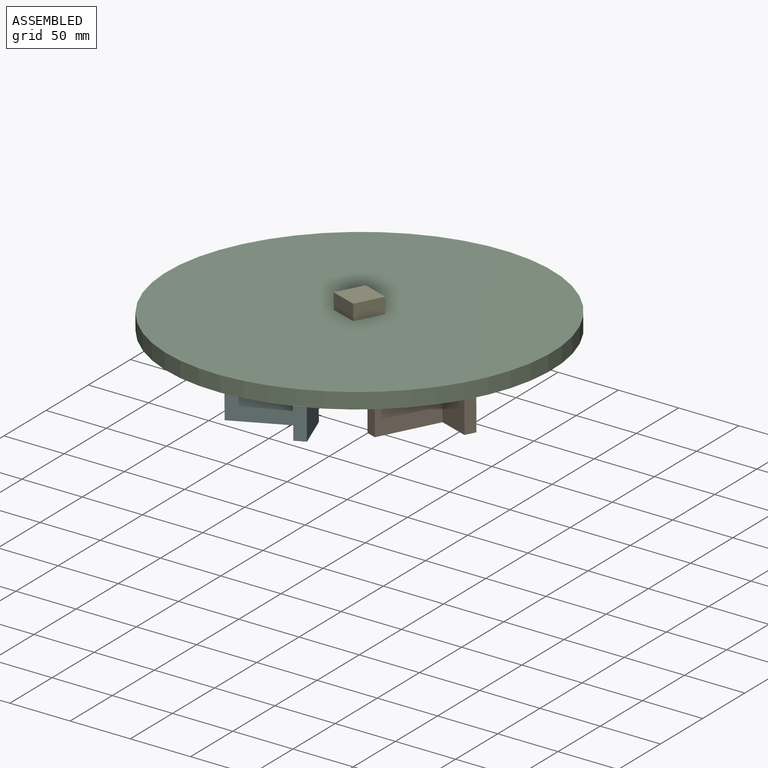
[diagram: assembled view]
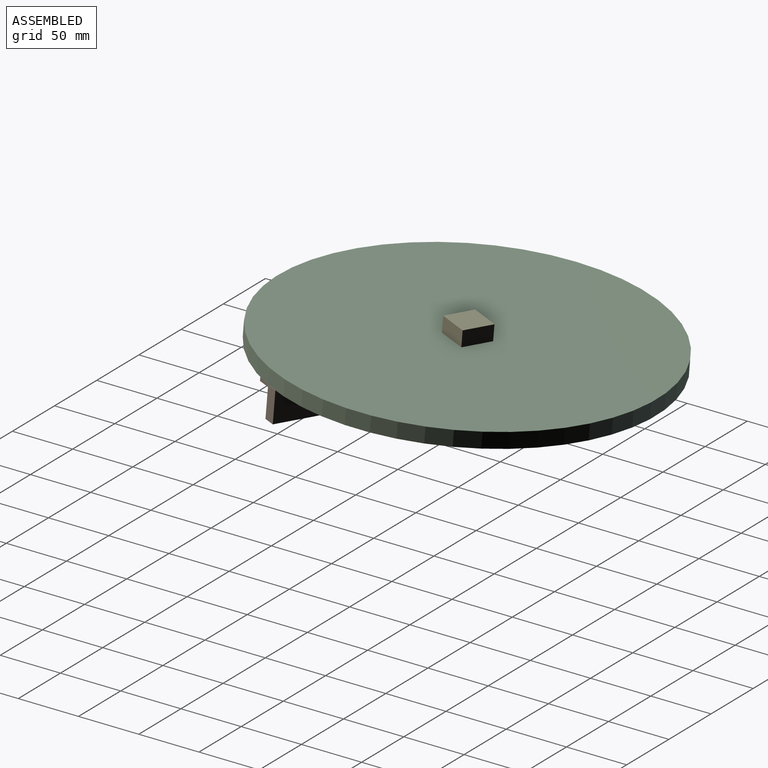
[diagram: assembled view, second angle]
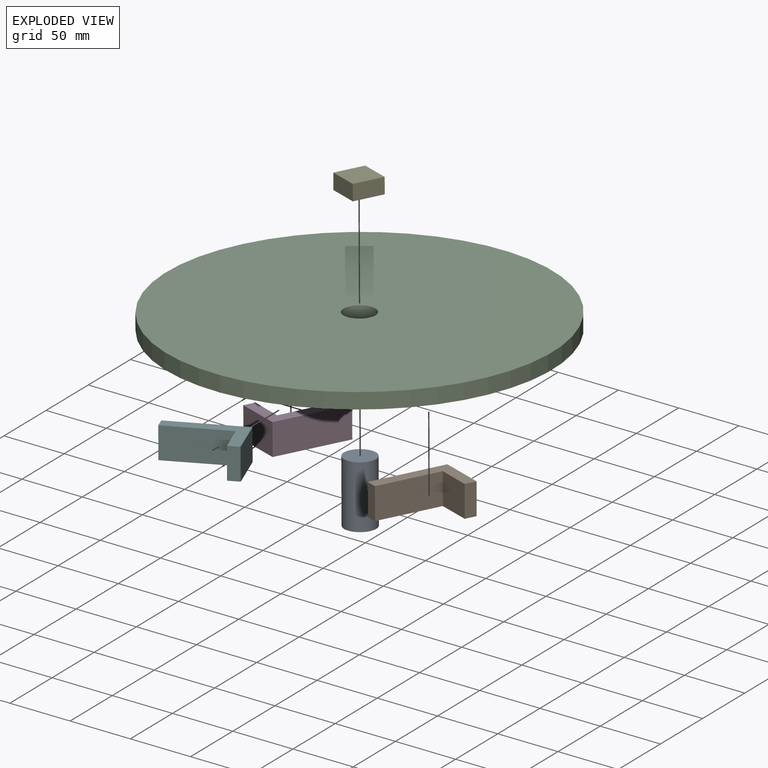
[diagram: exploded view]
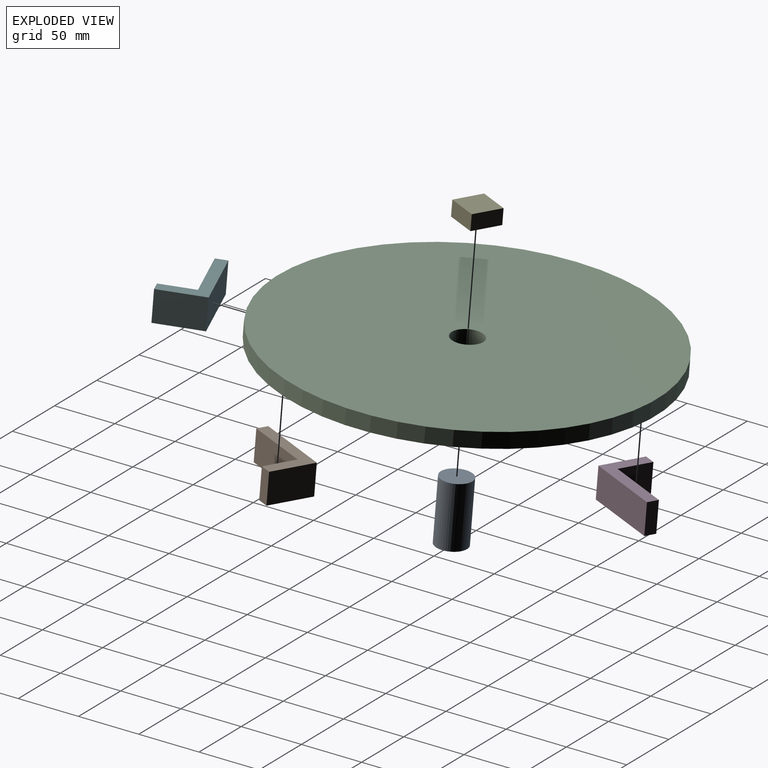
[diagram: exploded view, second angle]
ASSEMBLY  parts=6 mates=4
PART A: 3 faces, bbox 25.4x25.4x50.8 mm
  f0: cylinder r=12.7mm len=50.8mm, axis (0,0,-1), area 4053.7mm2, adj f1,f2
  f1: plane 25.4x25.4mm, normal (0,0,1), area 506.7mm2, adj f0
  f2: plane 25.4x25.4mm, normal (0,0,-1), area 506.7mm2, adj f0
PART B: 8 faces, bbox 63.5x38.1x25.4 mm
  f0: plane 28.58x25.4mm, normal (-1,0,0), area 725.8mm2, adj f1,f5,f6,f7
  f1: plane 53.98x25.4mm, normal (0,1,0), area 1371mm2, adj f0,f2,f6,f7
  f2: plane 25.4x9.53mm, normal (-1,0,0), area 241.9mm2, adj f1,f3,f6,f7
  f3: plane 63.5x25.4mm, normal (0,-1,0), area 1612.9mm2, adj f2,f4,f6,f7
  f4: plane 38.1x25.4mm, normal (1,0,0), area 967.7mm2, adj f3,f5,f6,f7
  f5: plane 25.4x9.53mm, normal (0,1,0), area 241.9mm2, adj f0,f4,f6,f7
  f6: plane 63.5x38.1mm, normal (0,0,1), area 877mm2, adj f0,f1,f2,f3,f4,f5
  f7: plane 63.5x38.1mm, normal (0,0,-1), area 877mm2, adj f0,f1,f2,f3,f4,f5
PART C: 4 faces, bbox 304.8x12.7x304.8 mm
  f0: cylinder r=12.7mm len=25.4mm, axis (0,1,0), area 1013.4mm2, adj f2,f3
  f1: cylinder r=152.4mm len=304.8mm, axis (0,1,0), area 12161mm2, adj f2,f3
  f2: plane 304.8x304.8mm, normal (0,-1,0), area 72459.2mm2, adj f0,f1
  f3: plane 304.8x304.8mm, normal (0,1,0), area 72459.2mm2, adj f0,f1
PART D: same geometry as B
PART E: 6 faces, bbox 25.4x25.4x12.7 mm
  f0: plane 25.4x12.7mm, normal (0,-1,0), area 322.6mm2, adj f1,f3,f4,f5
  f1: plane 25.4x12.7mm, normal (1,0,0), area 322.6mm2, adj f0,f2,f4,f5
  f2: plane 25.4x12.7mm, normal (0,1,0), area 322.6mm2, adj f1,f3,f4,f5
  f3: plane 25.4x12.7mm, normal (-1,0,0), area 322.6mm2, adj f0,f2,f4,f5
  f4: plane 25.4x25.4mm, normal (0,0,1), area 645.2mm2, adj f0,f1,f2,f3
  f5: plane 25.4x25.4mm, normal (0,0,-1), area 645.2mm2, adj f0,f1,f2,f3
PART F: same geometry as B
PLACE A rot(axis=(-0.06,-0.01,1),66.5deg) t=(-264.12,413.61,562.7)mm
PLACE B rot(axis=(0.84,0.55,0),176deg) t=(-162.97,342.43,609.29)mm
PLACE C rot(axis=(0.72,0.49,0.49),103.9deg) t=(-266.32,416.45,613.37)mm
PLACE D rot(axis=(-0.55,0.84,-0.04),179.7deg) t=(-368.57,489.06,592.12)mm
PLACE E rot(axis=(0.84,0.55,0),176deg) t=(-266.87,417.17,626.04)mm
PLACE F rot(axis=(0.98,0.2,0.02),176.4deg) t=(-245.41,290.13,609.19)mm
MATE fastened B.f7 <-> C.f2  axis (-0.04,0.06,1) through (-161.19,370.17,607.81)mm
MATE fastened A.f0 <-> C.f0  axis (-0.04,0.06,1) through (-266.32,416.45,613.37)mm
MATE fastened E.f4 <-> A.f0  axis (0.04,-0.06,-1) through (-266.32,416.45,613.37)mm
MATE fastened D.f7 <-> C.f2  axis (-0.04,0.06,1) through (-370.35,461.32,593.6)mm
